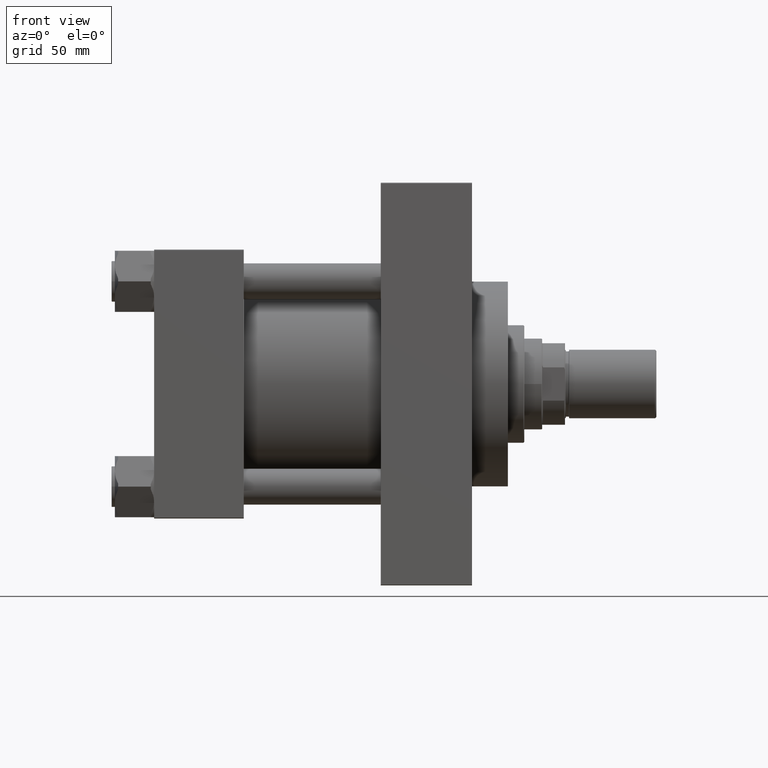
[diagram: clean part render]
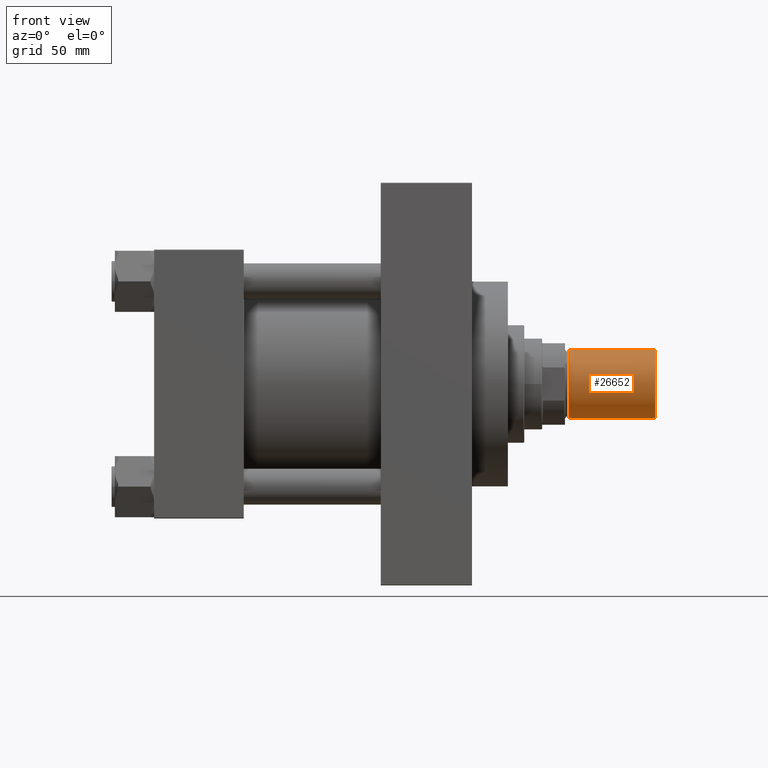
[diagram: same view with one face highlighted and labeled with its STEP entity id]
A machine part, front view. The second image highlights one B-rep face of the part: STEP entity #26652.
In plain terms, the highlighted cylindrical surface (edge-blend (fillet) strip) has radius 21 mm, axis along (1, -0, -0).
Its self-contained STEP definition (entity closure, byte-faithful):
#2491 = CARTESIAN_POINT ( 'NONE',  ( -21.00000000000000000, 0.000000000000000000, 53.50000000000000000 ) ) ;
#3208 = CARTESIAN_POINT ( 'NONE',  ( 21.00000000000000000, 2.571758278209441661E-15, 53.50000000000000000 ) ) ;
#4259 = CARTESIAN_POINT ( 'NONE',  ( 0.000000000000000000, 0.000000000000000000, 53.50000000000000000 ) ) ;
#4456 = LINE ( 'NONE', #5346, #40429 ) ;
#4930 = VERTEX_POINT ( 'NONE', #2491 ) ;
#5346 = CARTESIAN_POINT ( 'NONE',  ( -21.00000000000000000, 0.000000000000000000, 53.50000000000000000 ) ) ;
#5647 = CARTESIAN_POINT ( 'NONE',  ( -21.00000000000000000, 0.000000000000000000, 0.7999999999999882760 ) ) ;
#7333 = AXIS2_PLACEMENT_3D ( 'NONE', #14006, #20830, #31777 ) ;
#7714 = CARTESIAN_POINT ( 'NONE',  ( 0.000000000000000000, 0.000000000000000000, 53.50000000000000000 ) ) ;
#8734 = VERTEX_POINT ( 'NONE', #37849 ) ;
#10232 = CARTESIAN_POINT ( 'NONE',  ( 21.00000000000000000, 2.571758278209441661E-15, 0.7999999999999882760 ) ) ;
#10433 = CIRCLE ( 'NONE', #7333, 21.00000000000000000 ) ;
#13326 = ORIENTED_EDGE ( 'NONE', *, *, #39297, .T. ) ;
#14006 = CARTESIAN_POINT ( 'NONE',  ( 0.000000000000000000, 0.000000000000000000, 0.7999999999999882760 ) ) ;
#15661 = CIRCLE ( 'NONE', #47516, 21.00000000000000000 ) ;
#16853 = EDGE_CURVE ( 'NONE', #4930, #8734, #15661, .T. ) ;
#17899 = VERTEX_POINT ( 'NONE', #10232 ) ;
#18092 = DIRECTION ( 'NONE',  ( -0.000000000000000000, -0.000000000000000000, -1.000000000000000000 ) ) ;
#18205 = FACE_OUTER_BOUND ( 'NONE', #42170, .T. ) ;
#19833 = DIRECTION ( 'NONE',  ( 0.000000000000000000, 0.000000000000000000, 1.000000000000000000 ) ) ;
#20830 = DIRECTION ( 'NONE',  ( -0.000000000000000000, -0.000000000000000000, 1.000000000000000000 ) ) ;
#21611 = DIRECTION ( 'NONE',  ( -0.000000000000000000, -0.000000000000000000, -1.000000000000000000 ) ) ;
#22951 = VERTEX_POINT ( 'NONE', #5647 ) ;
#26156 = EDGE_CURVE ( 'NONE', #4930, #22951, #4456, .T. ) ;
#26652 = ADVANCED_FACE ( 'NONE', ( #18205 ), #37167, .T. ) ;
#28232 = EDGE_CURVE ( 'NONE', #8734, #17899, #40235, .T. ) ;
#31777 = DIRECTION ( 'NONE',  ( 1.000000000000000000, 0.000000000000000000, 0.000000000000000000 ) ) ;
#35058 = DIRECTION ( 'NONE',  ( -0.000000000000000000, -0.000000000000000000, -1.000000000000000000 ) ) ;
#37167 = CYLINDRICAL_SURFACE ( 'NONE', #43515, 21.00000000000000000 ) ;
#37849 = CARTESIAN_POINT ( 'NONE',  ( 21.00000000000000000, 2.571758278209441661E-15, 53.50000000000000000 ) ) ;
#38174 = VECTOR ( 'NONE', #18092, 1000.000000000000000 ) ;
#39297 = EDGE_CURVE ( 'NONE', #22951, #17899, #10433, .T. ) ;
#39446 = ORIENTED_EDGE ( 'NONE', *, *, #26156, .T. ) ;
#39482 = ORIENTED_EDGE ( 'NONE', *, *, #16853, .F. ) ;
#40235 = LINE ( 'NONE', #3208, #38174 ) ;
#40343 = DIRECTION ( 'NONE',  ( -1.000000000000000000, 0.000000000000000000, 0.000000000000000000 ) ) ;
#40429 = VECTOR ( 'NONE', #35058, 1000.000000000000000 ) ;
#41593 = ORIENTED_EDGE ( 'NONE', *, *, #28232, .F. ) ;
#42170 = EDGE_LOOP ( 'NONE', ( #41593, #39482, #39446, #13326 ) ) ;
#43515 = AXIS2_PLACEMENT_3D ( 'NONE', #7714, #21611, #40343 ) ;
#45397 = DIRECTION ( 'NONE',  ( 1.000000000000000000, 0.000000000000000000, 0.000000000000000000 ) ) ;
#47516 = AXIS2_PLACEMENT_3D ( 'NONE', #4259, #19833, #45397 ) ;